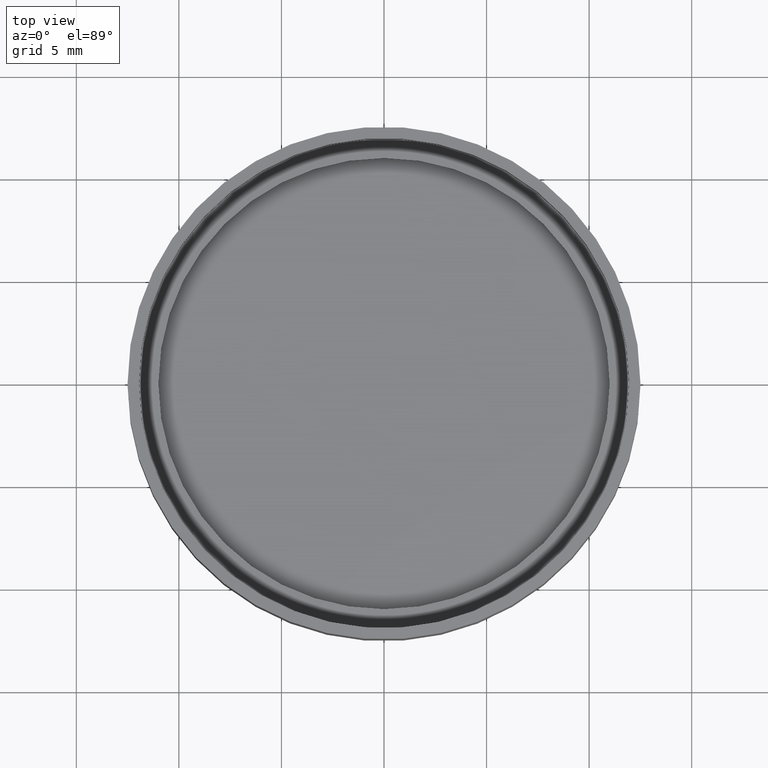
[diagram: clean part render]
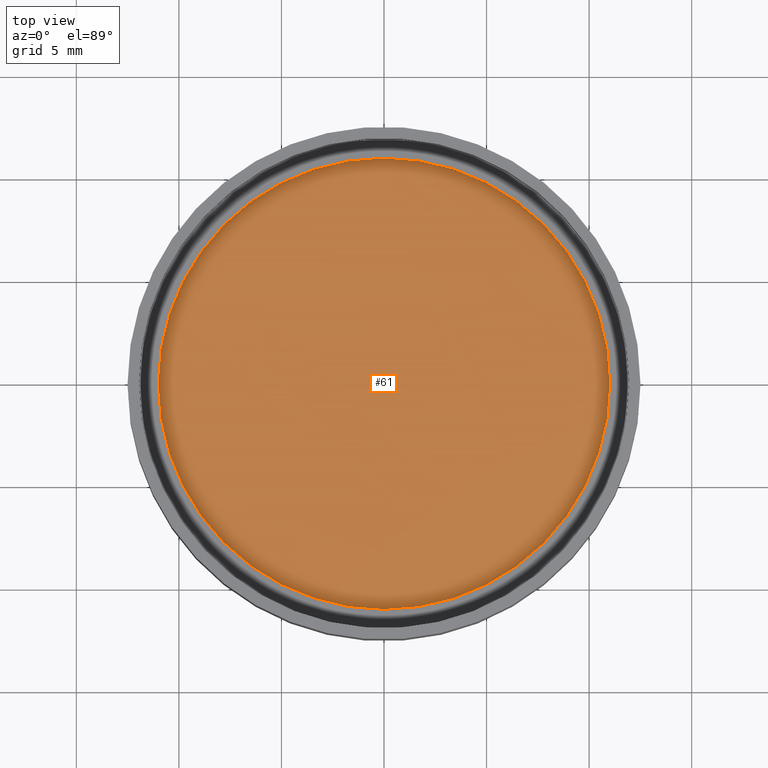
[diagram: same view with one face highlighted and labeled with its STEP entity id]
A machine part, top view. The second image highlights one B-rep face of the part: STEP entity #61.
In plain terms, the highlighted planar face has unit normal (0, 0, 1).
Its self-contained STEP definition (entity closure, byte-faithful):
#61 = ADVANCED_FACE ( 'NONE', ( #203 ), #474, .T. ) ;
#91 = CARTESIAN_POINT ( 'NONE',  ( 0.0000000000000000000, -4.665750208063244300E-017, 2.381000000000001100 ) ) ;
#97 = DIRECTION ( 'NONE',  ( 0.0000000000000000000, 0.0000000000000000000, 1.000000000000000000 ) ) ;
#168 = EDGE_LOOP ( 'NONE', ( #524, #314 ) ) ;
#184 = DIRECTION ( 'NONE',  ( 1.000000000000000000, 0.0000000000000000000, 0.0000000000000000000 ) ) ;
#191 = DIRECTION ( 'NONE',  ( -0.0000000000000000000, -0.0000000000000000000, -1.000000000000000000 ) ) ;
#202 = DIRECTION ( 'NONE',  ( 1.000000000000000000, 0.0000000000000000000, -0.0000000000000000000 ) ) ;
#203 = FACE_OUTER_BOUND ( 'NONE', #168, .T. ) ;
#248 = CIRCLE ( 'NONE', #275, 11.00000000000000000 ) ;
#275 = AXIS2_PLACEMENT_3D ( 'NONE', #290, #460, #632 ) ;
#290 = CARTESIAN_POINT ( 'NONE',  ( 0.0000000000000000000, 0.0000000000000000000, 2.381000000000001100 ) ) ;
#314 = ORIENTED_EDGE ( 'NONE', *, *, #535, .F. ) ;
#322 = CARTESIAN_POINT ( 'NONE',  ( -11.00000000000000000, 1.347111479062088400E-015, 2.381000000000001100 ) ) ;
#323 = VERTEX_POINT ( 'NONE', #322 ) ;
#388 = VERTEX_POINT ( 'NONE', #512 ) ;
#398 = CARTESIAN_POINT ( 'NONE',  ( 0.0000000000000000000, 0.0000000000000000000, 2.381000000000001100 ) ) ;
#460 = DIRECTION ( 'NONE',  ( -0.0000000000000000000, -0.0000000000000000000, -1.000000000000000000 ) ) ;
#474 = PLANE ( 'NONE',  #691 ) ;
#512 = CARTESIAN_POINT ( 'NONE',  ( 11.00000000000000000, 0.0000000000000000000, 2.381000000000001100 ) ) ;
#524 = ORIENTED_EDGE ( 'NONE', *, *, #600, .F. ) ;
#535 = EDGE_CURVE ( 'NONE', #323, #388, #248, .T. ) ;
#600 = EDGE_CURVE ( 'NONE', #388, #323, #713, .T. ) ;
#632 = DIRECTION ( 'NONE',  ( 1.000000000000000000, 0.0000000000000000000, 0.0000000000000000000 ) ) ;
#649 = AXIS2_PLACEMENT_3D ( 'NONE', #398, #191, #184 ) ;
#691 = AXIS2_PLACEMENT_3D ( 'NONE', #91, #97, #202 ) ;
#713 = CIRCLE ( 'NONE', #649, 11.00000000000000000 ) ;